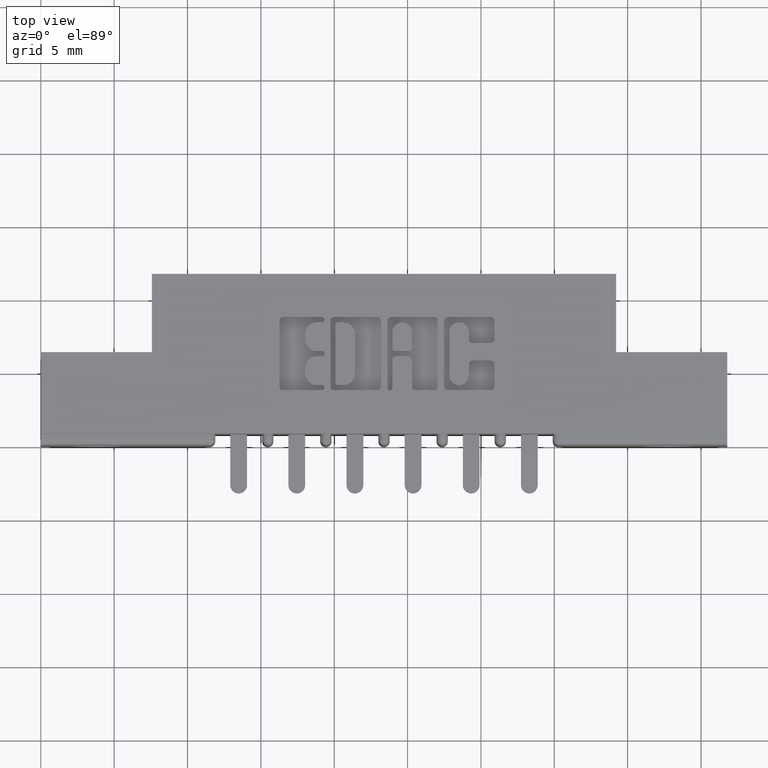
[diagram: clean part render]
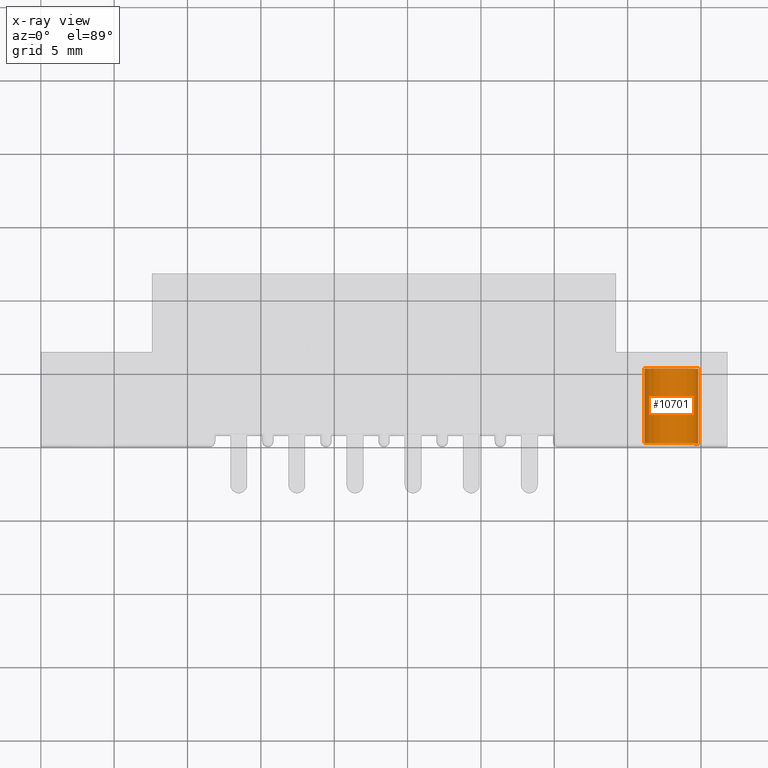
[diagram: x-ray — body ghosted, one internal face saturated and labeled with its STEP entity id]
A machine part, top view, then the same camera in x-ray: the body is ghosted and one INTERNAL B-rep face — a face not visible from any outside direction — is saturated and labeled: STEP entity #10701.
In plain terms, the highlighted cylindrical surface (edge-blend (fillet) strip) has radius 1.9685 mm, axis along (-0, 1, -0).
Its self-contained STEP definition (entity closure, byte-faithful):
#229 = DIRECTION ( 'NONE',  ( 6.779273404243070200E-032, 1.000000000000000000, 4.005934284325450600E-032 ) ) ;
#416 = DIRECTION ( 'NONE',  ( 6.779273404243070200E-032, 1.000000000000000000, 4.005934284325450600E-032 ) ) ;
#643 = ORIENTED_EDGE ( 'NONE', *, *, #10082, .F. ) ;
#1159 = CARTESIAN_POINT ( 'NONE',  ( 0.0000000000000000000, 0.2400000000000000500, 0.0000000000000000000 ) ) ;
#1242 = CARTESIAN_POINT ( 'NONE',  ( 5.188898472969513300E-018, 0.2400000000000000500, 0.07750000000000005500 ) ) ;
#1620 = CIRCLE ( 'NONE', #1975, 0.07750000000000005500 ) ;
#1975 = AXIS2_PLACEMENT_3D ( 'NONE', #10469, #416, #4939 ) ;
#2182 = DIRECTION ( 'NONE',  ( -6.779273404243070200E-032, -1.000000000000000000, -4.005934284325450600E-032 ) ) ;
#2357 = CARTESIAN_POINT ( 'NONE',  ( 4.302114220422481600E-018, 0.2400000000000000500, -0.07750000000000005500 ) ) ;
#2418 = EDGE_CURVE ( 'NONE', #2939, #7231, #5731, .T. ) ;
#2939 = VERTEX_POINT ( 'NONE', #4834 ) ;
#2965 = VERTEX_POINT ( 'NONE', #5804 ) ;
#3477 = DIRECTION ( 'NONE',  ( 5.551115123125779000E-017, 0.0000000000000000000, -1.000000000000000000 ) ) ;
#3557 = CARTESIAN_POINT ( 'NONE',  ( 0.0000000000000000000, 0.2400000000000000500, 0.0000000000000000000 ) ) ;
#3824 = CIRCLE ( 'NONE', #7912, 0.07750000000000005500 ) ;
#4016 = VECTOR ( 'NONE', #2182, 39.37007874015748100 ) ;
#4313 = VERTEX_POINT ( 'NONE', #6808 ) ;
#4814 = VECTOR ( 'NONE', #8685, 39.37007874015748100 ) ;
#4834 = CARTESIAN_POINT ( 'NONE',  ( 5.188898472969501700E-018, 0.2400000000000000500, 0.07749999999999999900 ) ) ;
#4939 = DIRECTION ( 'NONE',  ( -5.551115123125779000E-017, 0.0000000000000000000, 1.000000000000000000 ) ) ;
#5731 = LINE ( 'NONE', #1242, #4016 ) ;
#5764 = ORIENTED_EDGE ( 'NONE', *, *, #5871, .T. ) ;
#5804 = CARTESIAN_POINT ( 'NONE',  ( 4.302114220422470800E-018, 0.03999999999999998000, -0.07749999999999999900 ) ) ;
#5871 = EDGE_CURVE ( 'NONE', #7231, #2965, #1620, .T. ) ;
#6808 = CARTESIAN_POINT ( 'NONE',  ( 4.302114220422470800E-018, 0.2400000000000000500, -0.07749999999999999900 ) ) ;
#7231 = VERTEX_POINT ( 'NONE', #9339 ) ;
#7298 = DIRECTION ( 'NONE',  ( -6.779273404243070200E-032, -1.000000000000000000, -4.005934284325450600E-032 ) ) ;
#7489 = AXIS2_PLACEMENT_3D ( 'NONE', #3557, #7298, #3477 ) ;
#7912 = AXIS2_PLACEMENT_3D ( 'NONE', #1159, #229, #8529 ) ;
#8529 = DIRECTION ( 'NONE',  ( -5.551115123125779000E-017, 0.0000000000000000000, 1.000000000000000000 ) ) ;
#8565 = CYLINDRICAL_SURFACE ( 'NONE', #7489, 0.07750000000000005500 ) ;
#8685 = DIRECTION ( 'NONE',  ( -6.779273404243070200E-032, -1.000000000000000000, -4.005934284325450600E-032 ) ) ;
#9339 = CARTESIAN_POINT ( 'NONE',  ( 5.188898472969501700E-018, 0.03999999999999998000, 0.07749999999999999900 ) ) ;
#10082 = EDGE_CURVE ( 'NONE', #2939, #4313, #3824, .T. ) ;
#10144 = LINE ( 'NONE', #2357, #4814 ) ;
#10469 = CARTESIAN_POINT ( 'NONE',  ( 0.0000000000000000000, 0.03999999999999998000, 0.0000000000000000000 ) ) ;
#10482 = EDGE_CURVE ( 'NONE', #4313, #2965, #10144, .T. ) ;
#10588 = EDGE_LOOP ( 'NONE', ( #643, #11499, #5764, #10890 ) ) ;
#10701 = ADVANCED_FACE ( 'NONE', ( #11859 ), #8565, .T. ) ;
#10890 = ORIENTED_EDGE ( 'NONE', *, *, #10482, .F. ) ;
#11499 = ORIENTED_EDGE ( 'NONE', *, *, #2418, .T. ) ;
#11859 = FACE_OUTER_BOUND ( 'NONE', #10588, .T. ) ;